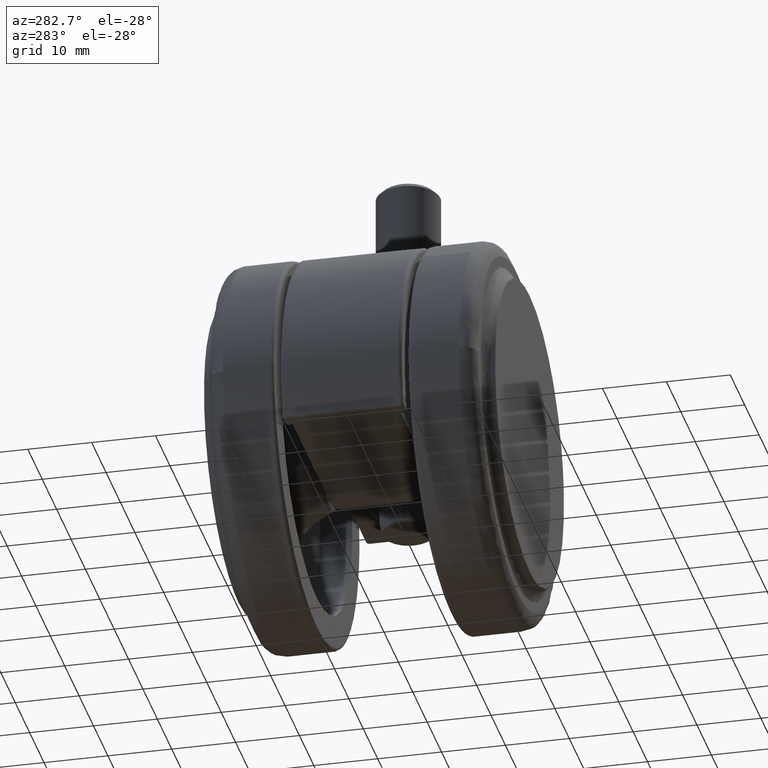
[diagram: clean part render]
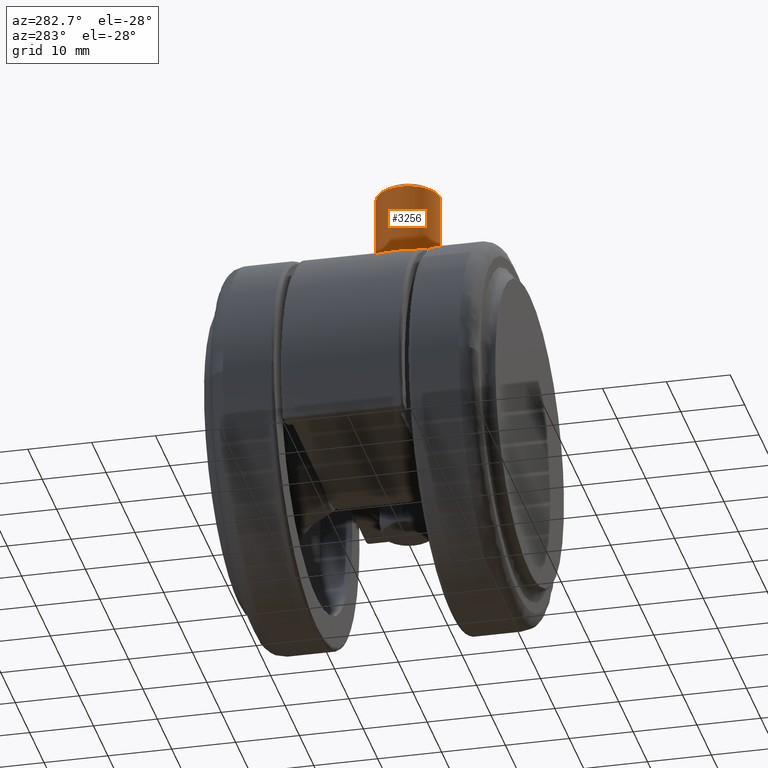
[diagram: same view with one face highlighted and labeled with its STEP entity id]
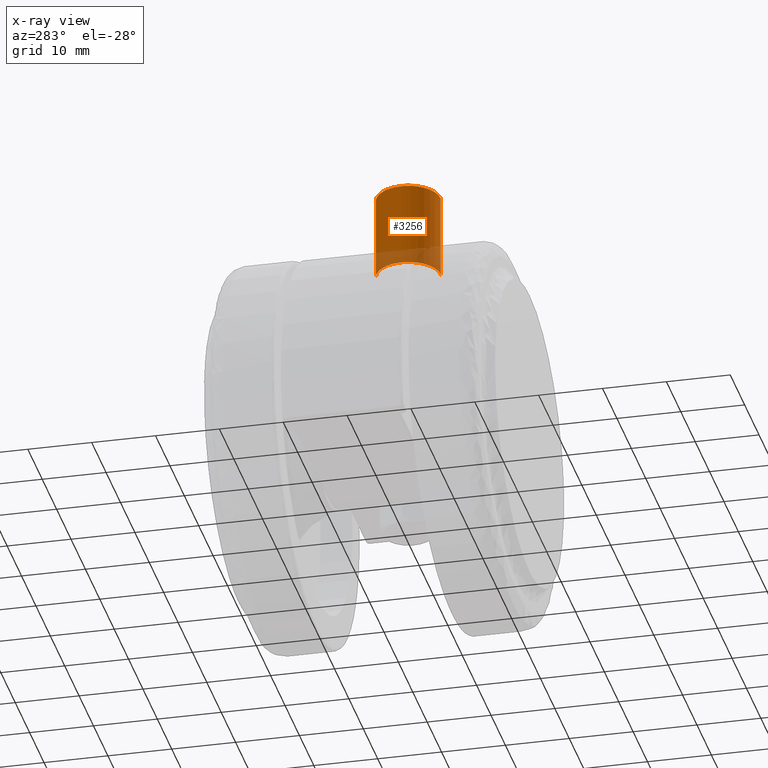
[diagram: x-ray of the same camera — body ghosted, the highlighted face saturated]
A machine part, auxiliary view. The second image highlights one B-rep face of the part: STEP entity #3256.
The next image is the same camera in x-ray: the body ghosted, the highlighted face saturated — about 20% of this face is hidden behind the body in this view.
In plain terms, the highlighted face is a freeform B-spline surface patch.
Its self-contained STEP definition (entity closure, byte-faithful):
#3031=CARTESIAN_POINT('',(16.694758793850230,4.990674077571486,51.688000005751768));
#3032=VERTEX_POINT('',#3031);
#3040=CARTESIAN_POINT('',(17.305241206149770,-4.990674077571426,51.688000005751782));
#3041=VERTEX_POINT('',#3040);
#3099=CARTESIAN_POINT('',(12.0,2.842171E-014,51.688000000000002));
#3100=VERTEX_POINT('',#3099);
#3101=CARTESIAN_POINT('',(12.0,2.842171E-014,51.688000000000002));
#3102=CARTESIAN_POINT('',(11.999999254588909,4.703533102063354,51.688000002875889));
#3103=CARTESIAN_POINT('',(16.694758793850227,4.990674077571486,51.688000005751768));
#3111=(BOUNDED_CURVE()B_SPLINE_CURVE(2,(#3101,#3102,#3103),.UNSPECIFIED.,.F.,.U.)B_SPLINE_CURVE_WITH_KNOTS((3,3),(0.0,0.239333065353171),.UNSPECIFIED.)CURVE()GEOMETRIC_REPRESENTATION_ITEM()RATIONAL_B_SPLINE_CURVE((1.0,0.719603872480878,0.976072262660237))REPRESENTATION_ITEM(''));
#3112=EDGE_CURVE('',#3100,#3032,#3111,.T.);
#3114=CARTESIAN_POINT('',(17.305241206149777,-4.990674077571426,51.688000005751775));
#3115=CARTESIAN_POINT('',(17.152763790536923,-4.999999904447994,51.688000005669117));
#3116=CARTESIAN_POINT('',(17.000001446624250,-4.999999905928950,51.688000005581259));
#3117=CARTESIAN_POINT('',(12.000000701213159,-4.999999954401511,51.688000002705380));
#3118=CARTESIAN_POINT('',(12.0,2.842171E-014,51.688000000000002));
#3126=(BOUNDED_CURVE()B_SPLINE_CURVE(2,(#3114,#3115,#3116,#3117,#3118),.UNSPECIFIED.,.F.,.U.)B_SPLINE_CURVE_WITH_KNOTS((3,2,3),(0.739333065353171,0.750000000000000,1.0),.UNSPECIFIED.)CURVE()GEOMETRIC_REPRESENTATION_ITEM()RATIONAL_B_SPLINE_CURVE((0.976072262660237,0.987502908705670,1.0,0.707106781186548,1.0))REPRESENTATION_ITEM(''));
#3127=EDGE_CURVE('',#3041,#3100,#3126,.T.);
#3155=CARTESIAN_POINT('',(17.305239751161839,-4.990674172323981,38.500000000000000));
#3156=VERTEX_POINT('',#3155);
#3157=CARTESIAN_POINT('',(17.305241206149770,-4.990674077571426,51.688000005751782));
#3158=CARTESIAN_POINT('',(17.305239751161839,-4.990674172323981,38.500000000000000));
#3159=QUASI_UNIFORM_CURVE('',1,(#3157,#3158),.UNSPECIFIED.,.F.,.U.);
#3160=EDGE_CURVE('',#3041,#3156,#3159,.T.);
#3177=CARTESIAN_POINT('',(16.694760248838168,4.990674172324038,38.500000000000000));
#3178=VERTEX_POINT('',#3177);
#3194=CARTESIAN_POINT('',(16.694758793850230,4.990674077571486,51.688000005751768));
#3195=CARTESIAN_POINT('',(16.694760248838168,4.990674172324038,38.500000000000000));
#3196=QUASI_UNIFORM_CURVE('',1,(#3194,#3195),.UNSPECIFIED.,.F.,.U.);
#3197=EDGE_CURVE('',#3032,#3178,#3196,.T.);
#3202=CARTESIAN_POINT('',(17.305242697674281,-4.990673992109305,52.017700000000012));
#3203=CARTESIAN_POINT('',(12.314568705564952,-5.295916689783591,52.017700000000005));
#3204=CARTESIAN_POINT('',(12.009326007890669,-0.305242697674256,52.017700000000012));
#3205=CARTESIAN_POINT('',(11.704083310216383,4.685431294435077,52.017700000000005));
#3206=CARTESIAN_POINT('',(16.694757302325719,4.990673992109362,52.017700000000012));
#3207=CARTESIAN_POINT('',(17.305242697674281,-4.990673992109305,38.162057499999989));
#3208=CARTESIAN_POINT('',(12.314568705564952,-5.295916689783591,38.162057499999989));
#3209=CARTESIAN_POINT('',(12.009326007890669,-0.305242697674256,38.162057499999989));
#3210=CARTESIAN_POINT('',(11.704083310216383,4.685431294435077,38.162057499999989));
#3211=CARTESIAN_POINT('',(16.694757302325719,4.990673992109362,38.162057499999989));
#3219=(BOUNDED_SURFACE()B_SPLINE_SURFACE(2,1,((#3202,#3207),(#3203,#3208),(#3204,#3209),(#3205,#3210),(#3206,#3211)),.UNSPECIFIED.,.F.,.F.,.U.)B_SPLINE_SURFACE_WITH_KNOTS((3,2,3),(2,2),(0.0,8.284271247461899,16.568542494923800),(0.0,13.855642500000020),.UNSPECIFIED.)GEOMETRIC_REPRESENTATION_ITEM()RATIONAL_B_SPLINE_SURFACE(((1.0,1.0),(0.707106781186548,0.707106781186548),(1.0,1.0),(0.707106781186548,0.707106781186548),(1.0,1.0)))REPRESENTATION_ITEM('')SURFACE());
#3220=ORIENTED_EDGE('',*,*,#3112,.T.);
#3221=ORIENTED_EDGE('',*,*,#3197,.T.);
#3222=CARTESIAN_POINT('',(12.0,2.842171E-014,38.500000000000000));
#3223=VERTEX_POINT('',#3222);
#3224=CARTESIAN_POINT('',(12.0,2.842171E-014,38.500000000000000));
#3225=CARTESIAN_POINT('',(12.000000000000025,4.703533116699820,38.500000000000007));
#3226=CARTESIAN_POINT('',(16.694760248838165,4.990674172324038,38.500000000000000));
#3234=(BOUNDED_CURVE()B_SPLINE_CURVE(2,(#3224,#3225,#3226),.UNSPECIFIED.,.F.,.U.)B_SPLINE_CURVE_WITH_KNOTS((3,3),(0.0,0.239333064114241),.UNSPECIFIED.)CURVE()GEOMETRIC_REPRESENTATION_ITEM()RATIONAL_B_SPLINE_CURVE((1.0,0.719603873932374,0.976072260004972))REPRESENTATION_ITEM(''));
#3235=EDGE_CURVE('',#3223,#3178,#3234,.T.);
#3236=ORIENTED_EDGE('',*,*,#3235,.F.);
#3237=CARTESIAN_POINT('',(17.305239751161832,-4.990674172323981,38.500000000000007));
#3238=CARTESIAN_POINT('',(17.152762339105863,-4.999999999999114,38.499999999999993));
#3239=CARTESIAN_POINT('',(16.999999999999950,-4.999999999999127,38.499999999999993));
#3240=CARTESIAN_POINT('',(11.999999999999975,-4.999999999999561,38.500000000000000));
#3241=CARTESIAN_POINT('',(12.0,2.842171E-014,38.500000000000000));
#3249=(BOUNDED_CURVE()B_SPLINE_CURVE(2,(#3237,#3238,#3239,#3240,#3241),.UNSPECIFIED.,.F.,.U.)B_SPLINE_CURVE_WITH_KNOTS((3,2,3),(0.739333064114241,0.750000000000000,1.0),.UNSPECIFIED.)CURVE()GEOMETRIC_REPRESENTATION_ITEM()RATIONAL_B_SPLINE_CURVE((0.976072260004972,0.987502907254174,1.0,0.707106781186548,1.0))REPRESENTATION_ITEM(''));
#3250=EDGE_CURVE('',#3156,#3223,#3249,.T.);
#3251=ORIENTED_EDGE('',*,*,#3250,.F.);
#3252=ORIENTED_EDGE('',*,*,#3160,.F.);
#3253=ORIENTED_EDGE('',*,*,#3127,.T.);
#3254=EDGE_LOOP('',(#3220,#3221,#3236,#3251,#3252,#3253));
#3255=FACE_OUTER_BOUND('',#3254,.T.);
#3256=ADVANCED_FACE('',(#3255),#3219,.T.);